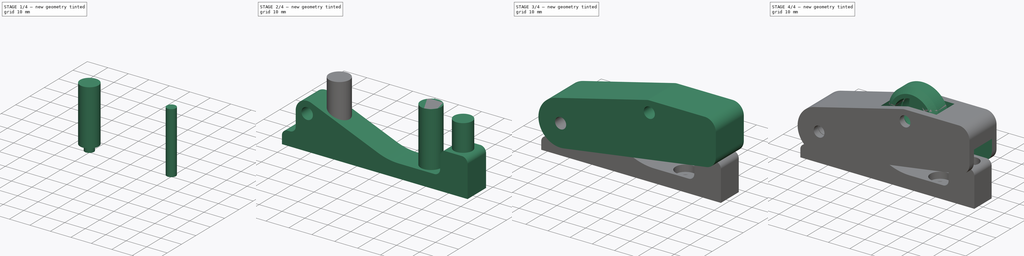
[diagram: build sequence overview — one tinted view per stage of 4, left to right]
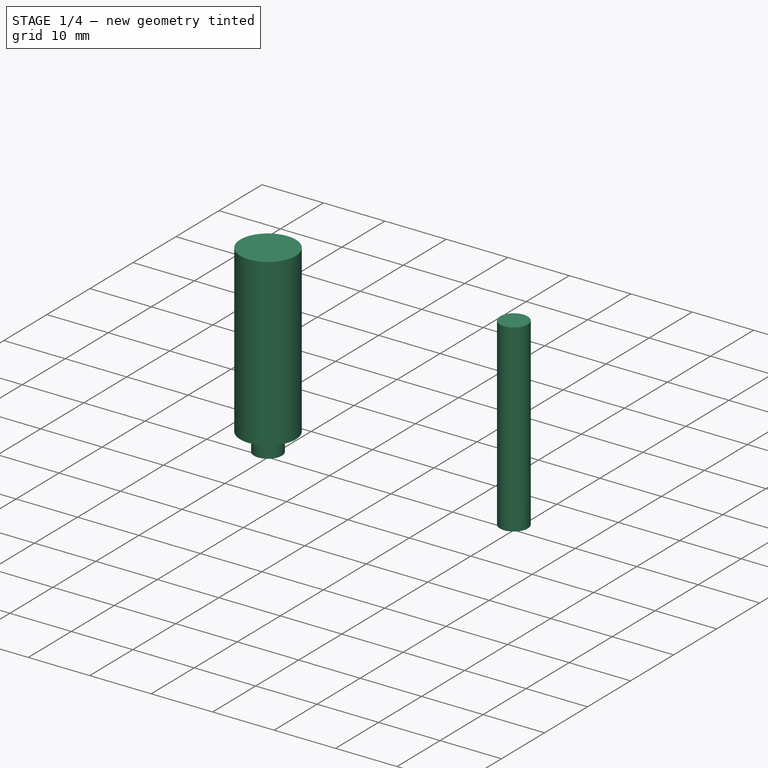
[diagram: stage 1 of 4 — iso view after this stage's code; geometry added in this stage tinted green]
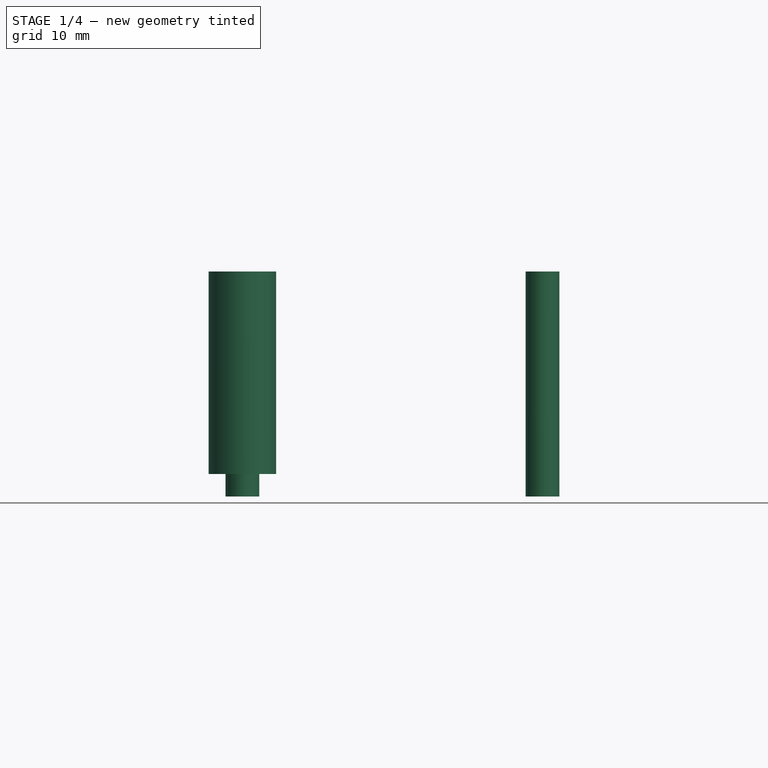
[diagram: stage 1 of 4 — front view after this stage's code; geometry added in this stage tinted green]
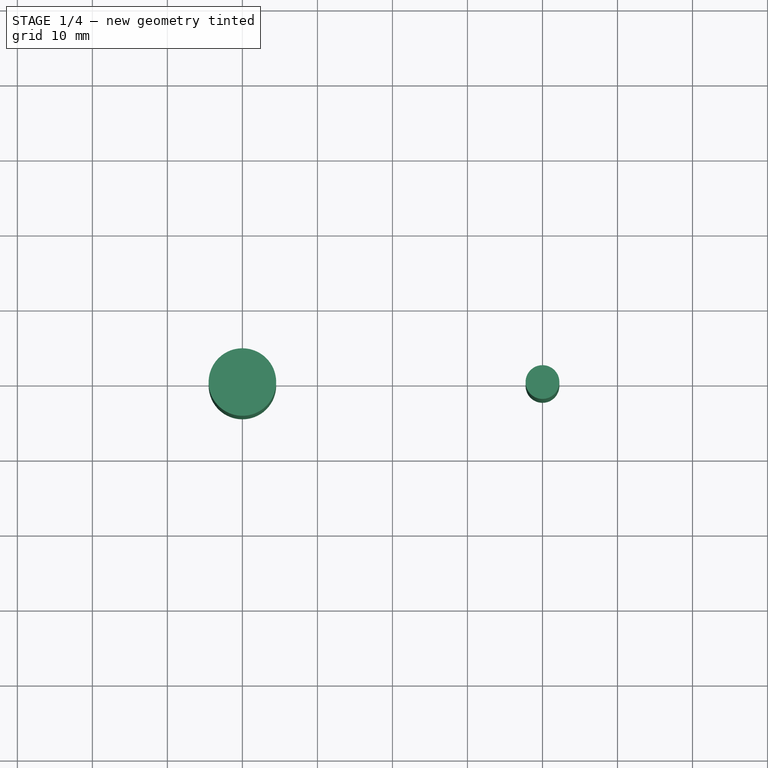
[diagram: stage 1 of 4 — top view after this stage's code; geometry added in this stage tinted green]
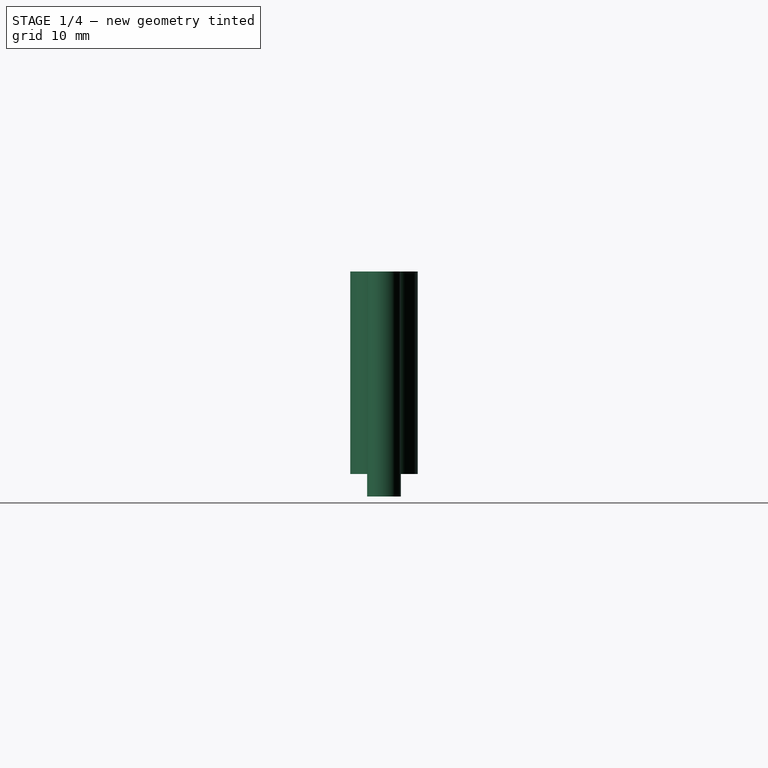
[diagram: stage 1 of 4 — right view after this stage's code; geometry added in this stage tinted green]
FCSTD DOCUMENT  (FreeCAD 0.19R23141 (Git))
Label: wheel_assembly
License: All rights reserved
LicenseURL: http://en.wikipedia.org/wiki/All_rights_reserved
objects: Part::Cylinder×6, Sketcher::SketchObject×4, PartDesign::Body×3, PartDesign::Boolean×3, PartDesign::Pad×2, PartDesign::Revolution×1, PartDesign::Pocket×1
note: 24 computed .brp shape members not serialized (recipe doc carries the construction recipe); baked Part::Feature solids carry a one-line shape summary decoded from their .brp

FEATURE [Part::Cylinder] Cylinder003
  Angle = 360
  AttacherType = Attacher::AttachEngine3D
  Height = 27
  Placement = pos=(-30,0,0) rot=(0,1,0;3.14159rad)
  Radius = 4.5
FEATURE [Part::Cylinder] Cylinder004
  Angle = 360
  AttacherType = Attacher::AttachEngine3D
  Height = 30
  Placement = pos=(10,0,0) rot=(0,1,0;3.14159rad)
  Radius = 2.25
FEATURE [Part::Cylinder] Cylinder005
  Angle = 360
  AttacherType = Attacher::AttachEngine3D
  Height = 30
  Placement = pos=(-30,0,0) rot=(0,1,0;3.14159rad)
  Radius = 2.25
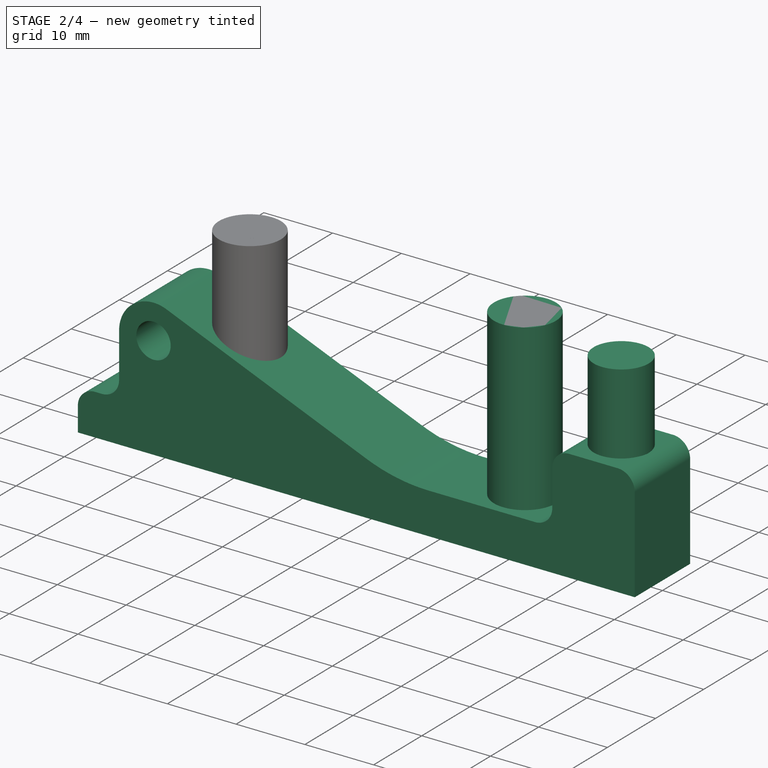
[diagram: stage 2 of 4 — iso view after this stage's code; geometry added in this stage tinted green]
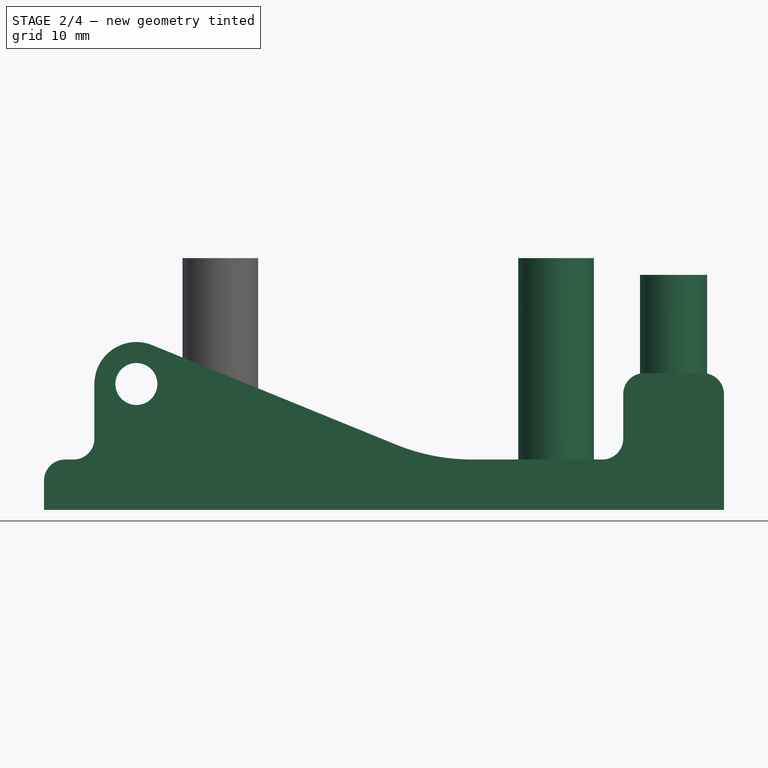
[diagram: stage 2 of 4 — front view after this stage's code; geometry added in this stage tinted green]
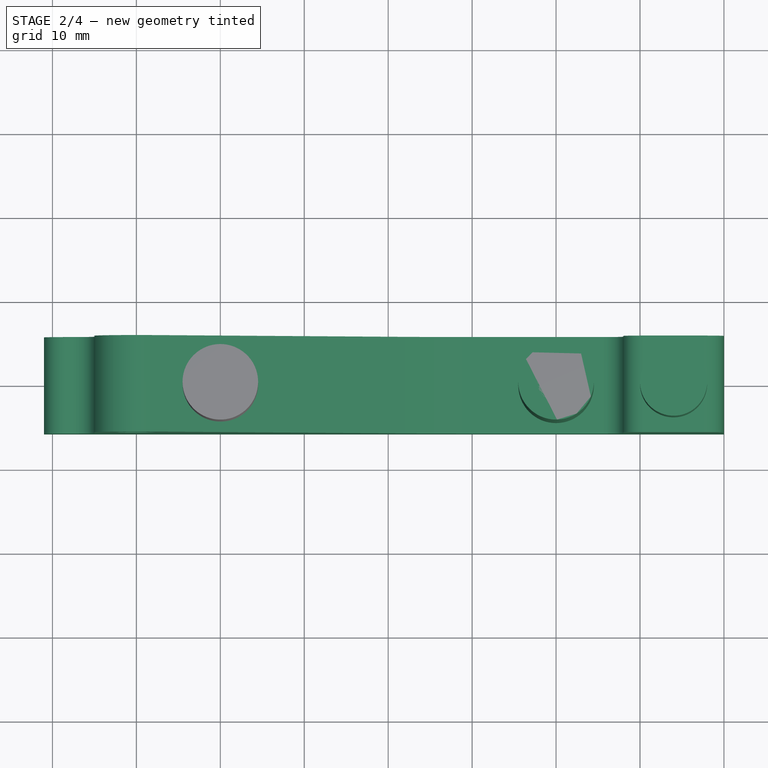
[diagram: stage 2 of 4 — top view after this stage's code; geometry added in this stage tinted green]
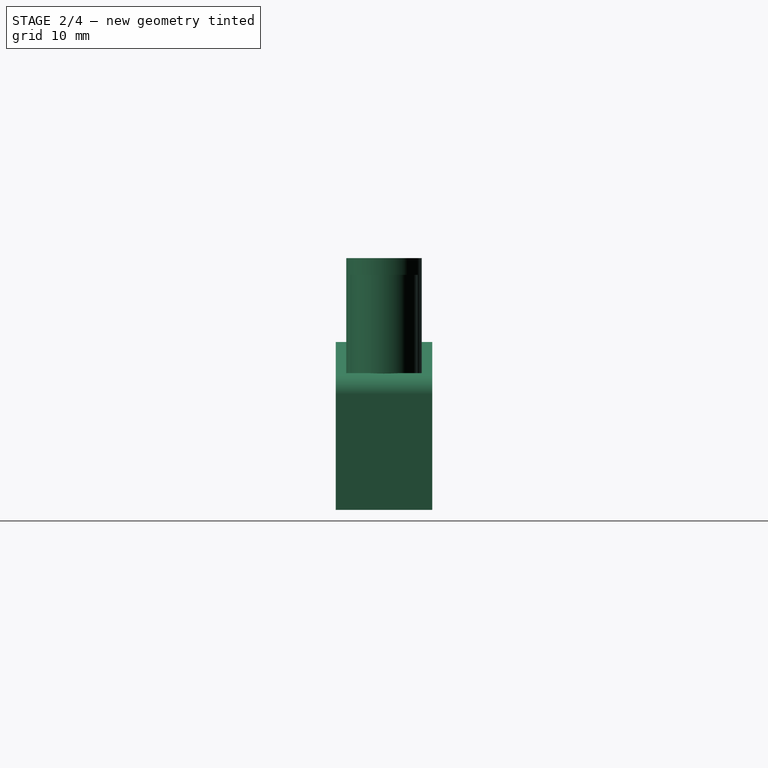
[diagram: stage 2 of 4 — right view after this stage's code; geometry added in this stage tinted green]
FEATURE [Sketcher::SketchObject] Sketch003
  MapMode = 5
  Placement = pos=(0,0,0) rot=(1,0,0;1.5708rad)
  Support = -> [XZ_Plane002]
  sketch-geometry (17):
    g0: ArcOfCircle CenterX=-40 CenterY=-15 CenterZ=0 NormalX=0 NormalY=0 NormalZ=1 AngleXU=0 Radius=5 StartAngle=1.18339 EndAngle=3.14159
    g1: LineSegment StartX=-51 StartY=-30 StartZ=0 EndX=30 EndY=-30 EndZ=0
    g2: Circle CenterX=-40 CenterY=-15 CenterZ=0 NormalX=0 NormalY=0 NormalZ=1 AngleXU=0 Radius=2.5
    g3: LineSegment StartX=-38.111 StartY=-10.3705 StartZ=0 EndX=-9.06698 EndY=-22.2214 EndZ=0
    g4: LineSegment StartX=30 StartY=-16.2062 StartZ=0 EndX=30 EndY=-30 EndZ=0
    g5: LineSegment StartX=0 StartY=-24 StartZ=0 EndX=15.5 EndY=-24 EndZ=0
    g6: LineSegment StartX=18 StartY=-21.5 StartZ=0 EndX=18 EndY=-16.2062 EndZ=0
    g7: LineSegment StartX=20.5 StartY=-13.7062 StartZ=0 EndX=27.5 EndY=-13.7062 EndZ=0
    g8: LineSegment StartX=-45 StartY=-15 StartZ=0 EndX=-45 EndY=-21.5 EndZ=0
    g9: LineSegment StartX=-47.5 StartY=-24 StartZ=0 EndX=-48.5 EndY=-24 EndZ=0
    g10: LineSegment StartX=-51 StartY=-26.5 StartZ=0 EndX=-51 EndY=-30 EndZ=0
    g11: ArcOfCircle CenterX=20.5 CenterY=-16.2062 CenterZ=0 NormalX=0 NormalY=0 NormalZ=1 AngleXU=0 Radius=2.5 StartAngle=1.5708 EndAngle=3.14159
    g12: ArcOfCircle CenterX=27.5 CenterY=-16.2062 CenterZ=0 NormalX=0 NormalY=0 NormalZ=1 AngleXU=0 Radius=2.5 StartAngle=0 EndAngle=1.5708
    g13: ArcOfCircle CenterX=15.5 CenterY=-21.5 CenterZ=0 NormalX=0 NormalY=0 NormalZ=1 AngleXU=0 Radius=2.5 StartAngle=4.71239 EndAngle=6.28319
    g14: ArcOfCircle CenterX=0 CenterY=0 CenterZ=0 NormalX=0 NormalY=0 NormalZ=1 AngleXU=0 Radius=24 StartAngle=4.32498 EndAngle=4.71239
    g15: ArcOfCircle CenterX=-48.5 CenterY=-26.5 CenterZ=0 NormalX=0 NormalY=0 NormalZ=1 AngleXU=0 Radius=2.5 StartAngle=1.5708 EndAngle=3.14159
    g16: ArcOfCircle CenterX=-47.5 CenterY=-21.5 CenterZ=0 NormalX=0 NormalY=0 NormalZ=1 AngleXU=0 Radius=2.5 StartAngle=4.71239 EndAngle=6.28319
  constraints (41):
    c: Diameter(g0) = 10
    c: DistanceX(g0,g-1) = 40
    c: DistanceY(g0,g-1) = 15
    c: Horizontal(g1)
    c: Coincident(g2,g0)
    c: Diameter(g2) = 5
    c: Tangent(g0,g3) = 1.5708
    c: Vertical(g4)
    c: Coincident(g1,g4)
    c: Horizontal(g5)
    c: Vertical(g6)
    c: Horizontal(g7)
    c: Tangent(g0,g8) = -1.5708
    c: Horizontal(g9)
    c: Vertical(g10)
    c: Coincident(g10,g1)
    c: DistanceY(g1,g-1) = 30
    c: Tangent(g6,g11) = 1.5708
    c: Tangent(g7,g11) = 1.5708
    c: Tangent(g7,g12) = 1.5708
    c: Tangent(g4,g12) = 1.5708
    c: Tangent(g6,g13) = -1.5708
    c: Tangent(g5,g13) = -1.5708
    c: Tangent(g5,g14) = -1.5708
    c: Tangent(g3,g14) = -1.5708
    c: Tangent(g10,g15) = -1.5708
    c: Tangent(g9,g15) = -1.5708
    c: Tangent(g9,g16) = 1.5708
    c: Tangent(g8,g16) = 1.5708
    c: Diameter(g16) = 5
    c: Equal(g16,g15)
    c: Equal(g16,g13)
    c: Equal(g16,g11)
    c: Equal(g16,g12)
    c: Vertical(g8)
    c: DistanceY(g1,g9) = 6
    c: Coincident(g14,g-1)
    c: DistanceX(g14,g1) = 30
    c: DistanceY(g1,g5) = 6
    c: DistanceX(g6,g4) = 12
    c: DistanceX(g9,g9) = 1
FEATURE [PartDesign::Pad] Pad001
  Direction = (1,1,1)
  Length = 11.5
  Length2 = 100
  Midplane = true
  Placement = pos=(0,0,0) rot=(1,0,0;1.5708rad)
  Profile = -> Sketch003
  Type = 0
FEATURE [Part::Cylinder] Cylinder
  Angle = 360
  AttacherType = Attacher::AttachEngine3D
  Height = 15
  Placement = pos=(24,0,-17) rot=(0,0,1;0rad)
  Radius = 4
FEATURE [PartDesign::Body] Body001
  Group = -> [Sketch001,Pad,Sketch002,Pocket,Boolean001]
  Origin = -> Origin001
  Tip = -> Boolean001
FEATURE [Part::Cylinder] Cylinder002
  Angle = 360
  AttacherType = Attacher::AttachEngine3D
  Height = 27
  Placement = pos=(10,0,0) rot=(0,1,0;3.14159rad)
  Radius = 4.5
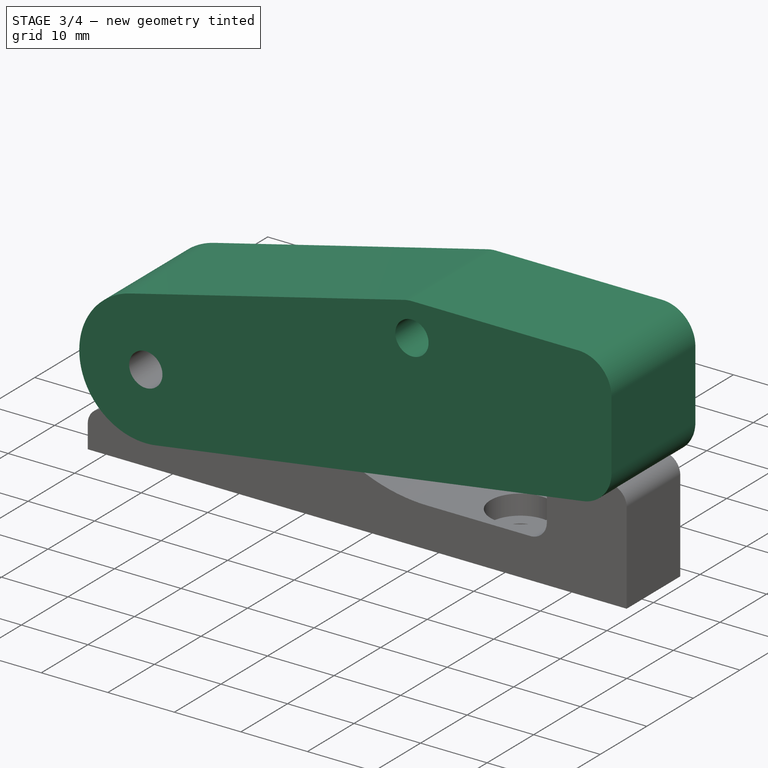
[diagram: stage 3 of 4 — iso view after this stage's code; geometry added in this stage tinted green]
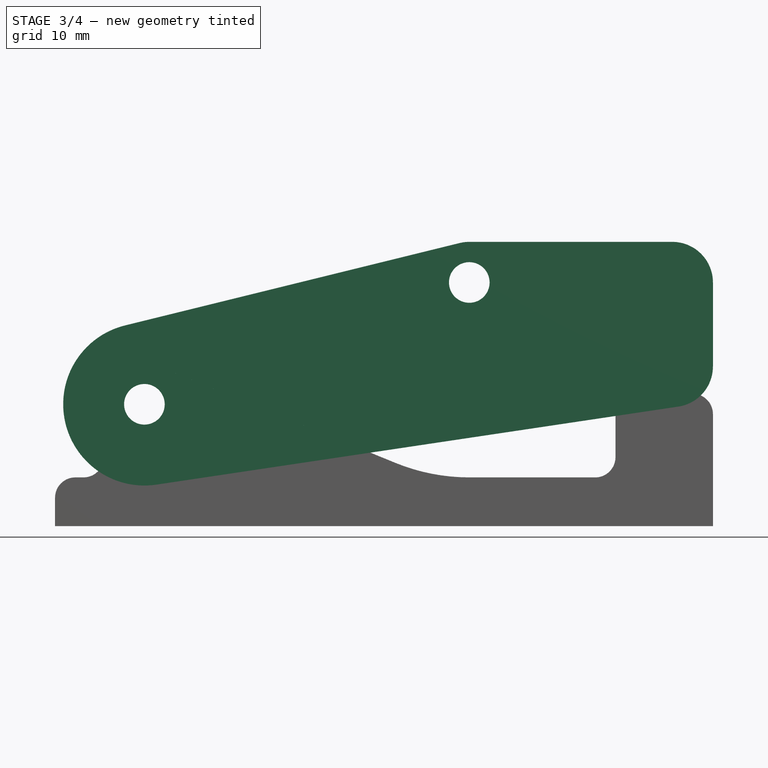
[diagram: stage 3 of 4 — front view after this stage's code; geometry added in this stage tinted green]
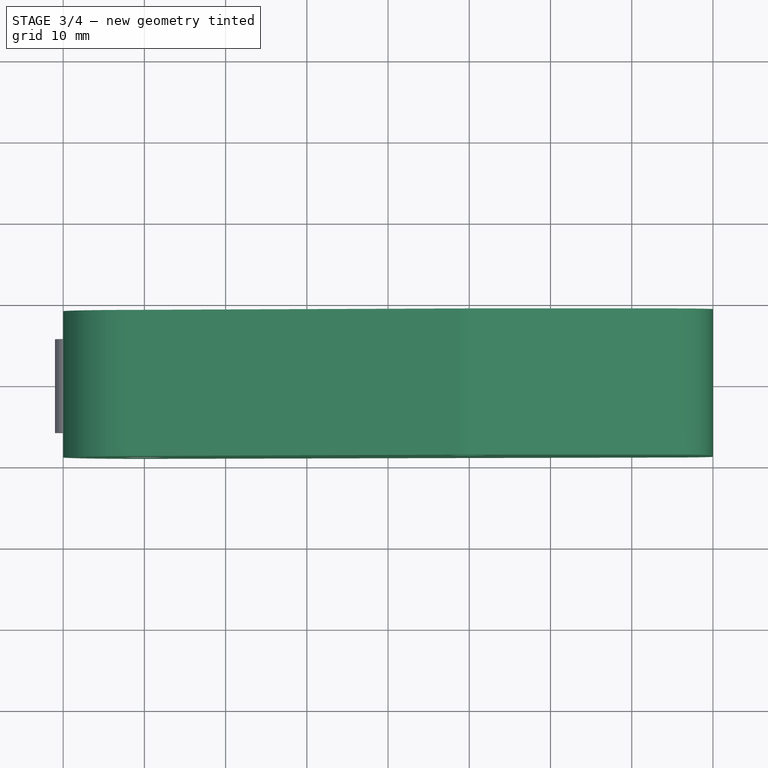
[diagram: stage 3 of 4 — top view after this stage's code; geometry added in this stage tinted green]
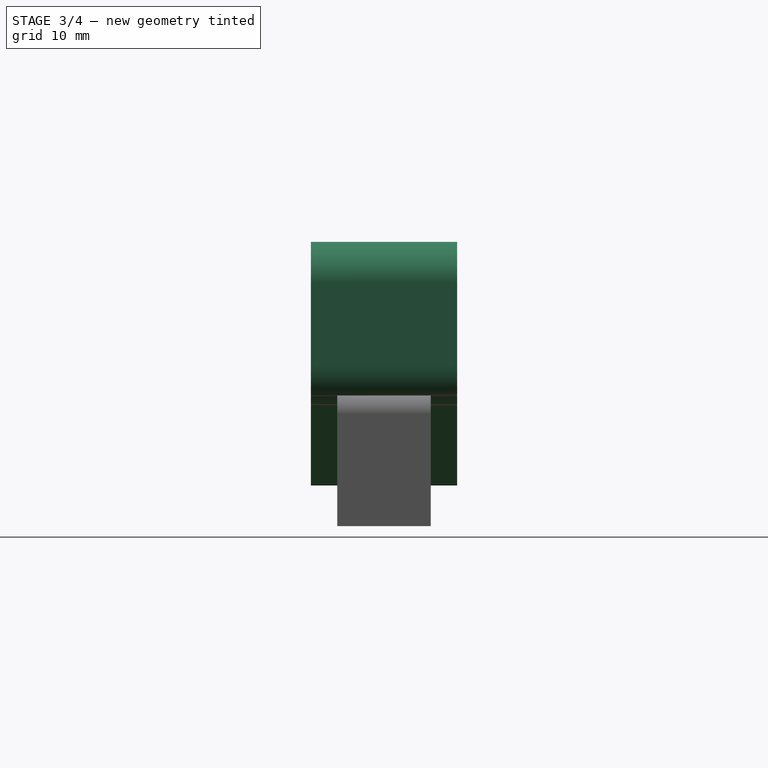
[diagram: stage 3 of 4 — right view after this stage's code; geometry added in this stage tinted green]
FEATURE [PartDesign::Body] Body
  Group = -> [Sketch,Revolution]
  Origin = -> Origin
  Tip = -> Revolution
FEATURE [Sketcher::SketchObject] Sketch001
  MapMode = 5
  Placement = pos=(0,0,0) rot=(1,0,0;1.5708rad)
  Support = -> [XZ_Plane001]
  sketch-geometry (10):
    g0: Circle CenterX=0 CenterY=0 CenterZ=0 NormalX=0 NormalY=0 NormalZ=1 AngleXU=0 Radius=2.5
    g1: ArcOfCircle CenterX=0 CenterY=0 CenterZ=0 NormalX=0 NormalY=0 NormalZ=1 AngleXU=0 Radius=5 StartAngle=1.5708 EndAngle=1.81226
    g2: LineSegment StartX=-1.19561 StartY=4.85495 StartZ=0 EndX=-42.3912 EndY=-5.2901 EndZ=0
    g3: ArcOfCircle CenterX=-40 CenterY=-15 CenterZ=0 NormalX=0 NormalY=0 NormalZ=1 AngleXU=0 Radius=10 StartAngle=1.81226 EndAngle=4.8608
    g4: LineSegment StartX=-8e-16 StartY=5 StartZ=0 EndX=25 EndY=5 EndZ=0
    g5: ArcOfCircle CenterX=25 CenterY=3e-16 CenterZ=0 NormalX=0 NormalY=0 NormalZ=1 AngleXU=0 Radius=5 StartAngle=0 EndAngle=1.5708
    g6: LineSegment StartX=-38.5213 StartY=-24.8901 StartZ=0 EndX=25.7393 EndY=-15.2825 EndZ=0
    g7: ArcOfCircle CenterX=25 CenterY=-10.3375 CenterZ=0 NormalX=0 NormalY=0 NormalZ=1 AngleXU=0 Radius=5 StartAngle=4.8608 EndAngle=6.28319
    g8: LineSegment StartX=30 StartY=-10.3375 StartZ=0 EndX=30 EndY=0 EndZ=0
    g9: Circle CenterX=-40 CenterY=-15 CenterZ=0 NormalX=0 NormalY=0 NormalZ=1 AngleXU=0 Radius=2.5
  constraints (22):
    c: Coincident(g0,g-1)
    c: Diameter(g0) = 5
    c: Coincident(g1,g0)
    c: Tangent(g1,g2) = -1.5708
    c: Tangent(g3,g2) = -1.5708
    c: Diameter(g3) = 20
    c: Tangent(g1,g4) = 1.5708
    c: Horizontal(g4)
    c: Tangent(g8,g7) = -1.5708
    c: Tangent(g8,g5) = -1.5708
    c: Tangent(g7,g6) = -1.5708
    c: Equal(g7,g5)
    c: Equal(g5,g1)
    c: Tangent(g5,g4) = 1.5708
    c: Vertical(g8)
    c: Tangent(g6,g3) = -1.5708
    c: Coincident(g9,g3)
    c: Equal(g9,g0)
    c: DistanceX(g3,g0) = 40
    c: DistanceY(g3,g0) = 15
    c: DistanceX(g0,g5) = 30
    c: Diameter(g5) = 10
FEATURE [PartDesign::Pad] Pad
  Direction = (1,1,1)
  Length = 18
  Length2 = 100
  Midplane = true
  Placement = pos=(0,0,0) rot=(1,0,0;1.5708rad)
  Profile = -> Sketch001
  Type = 0
FEATURE [Part::Cylinder] Cylinder001
  Angle = 360
  AttacherType = Attacher::AttachEngine3D
  Height = 15
  Placement = pos=(24,0,-17) rot=(0,0,1;0rad)
  Radius = 4
FEATURE [PartDesign::Boolean] Boolean
  BaseFeature = -> Pad001
  Group = -> [Cylinder]
  Type = 1
FEATURE [PartDesign::Boolean] Boolean002
  BaseFeature = -> Boolean
  Group = -> [Cylinder005,Cylinder002,Cylinder003,Cylinder004]
  Type = 1
FEATURE [PartDesign::Body] Body002
  Group = -> [Sketch003,Pad001,Boolean,Boolean002]
  Origin = -> Origin002
  Tip = -> Boolean002
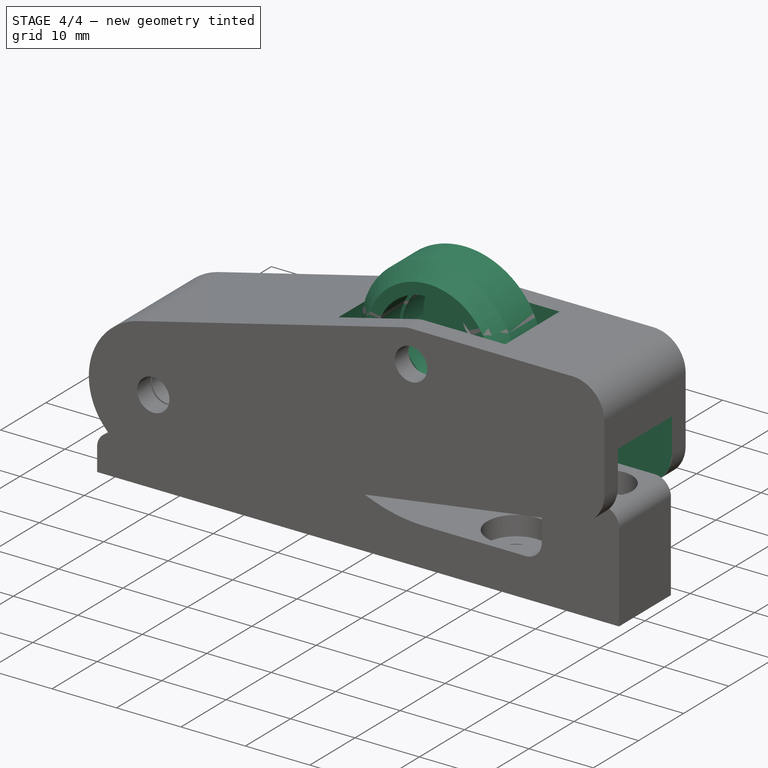
[diagram: stage 4 of 4 — iso view after this stage's code; geometry added in this stage tinted green]
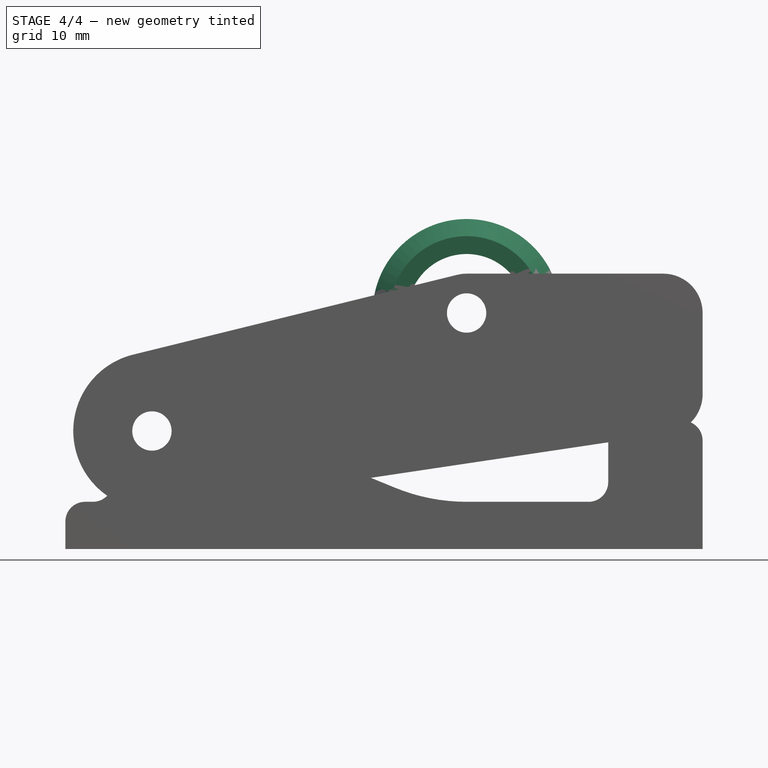
[diagram: stage 4 of 4 — front view after this stage's code; geometry added in this stage tinted green]
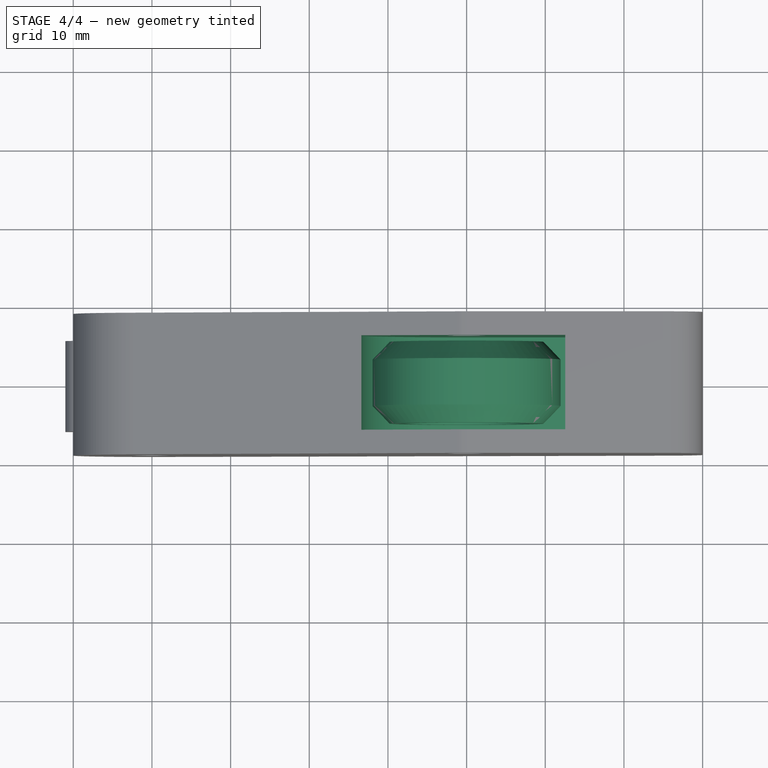
[diagram: stage 4 of 4 — top view after this stage's code; geometry added in this stage tinted green]
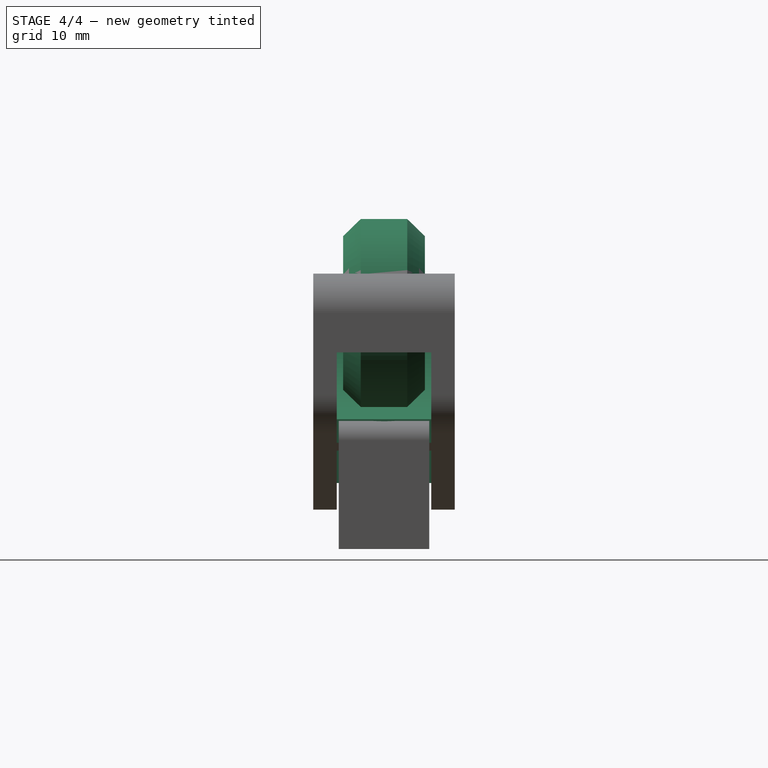
[diagram: stage 4 of 4 — right view after this stage's code; geometry added in this stage tinted green]
FEATURE [Sketcher::SketchObject] Sketch
  MapMode = 5
  Placement = pos=(0,0,0) rot=(0.57735,0.57735,0.57735;2.0944rad)
  Support = -> [YZ_Plane]
  sketch-geometry (14):
    g0: LineSegment StartX=-5.2 StartY=8 StartZ=0 EndX=-0.2 EndY=8 EndZ=0
    g1: LineSegment StartX=-0.2 StartY=8 StartZ=0 EndX=-0.2 EndY=7.5 EndZ=0
    g2: LineSegment StartX=-0.2 StartY=7.5 StartZ=0 EndX=0.2 EndY=7.5 EndZ=0
    g3: LineSegment StartX=0.2 StartY=7.5 StartZ=0 EndX=0.2 EndY=8 EndZ=0
    g4: LineSegment StartX=0.2 StartY=8 StartZ=0 EndX=5.2 EndY=8 EndZ=0
    g5: LineSegment StartX=5.2 StartY=8 StartZ=0 EndX=5.2 EndY=9.77 EndZ=0
    g6: LineSegment StartX=5.2 StartY=9.77 StartZ=0 EndX=2.95 EndY=11.95 EndZ=0
    g7: LineSegment StartX=2.95 StartY=11.95 StartZ=0 EndX=-2.95 EndY=11.95 EndZ=0
    g8: LineSegment StartX=-2.95 StartY=11.95 StartZ=0 EndX=-5.2 EndY=9.77 EndZ=0
    g9: LineSegment StartX=-5.2 StartY=9.77 StartZ=0 EndX=-5.2 EndY=8 EndZ=0
    g10: LineSegment [constr] StartX=-0.2 StartY=7.5 StartZ=0 EndX=0 EndY=0 EndZ=0
    g11: LineSegment [constr] StartX=0 StartY=0 StartZ=0 EndX=0.2 EndY=7.5 EndZ=0
    g12: LineSegment [constr] StartX=-5.2 StartY=8 StartZ=0 EndX=0 EndY=9e-16 EndZ=0
    g13: LineSegment [constr] StartX=0 StartY=9e-16 StartZ=0 EndX=5.2 EndY=8 EndZ=0
  constraints (38):
    c: Horizontal(g0)
    c: Coincident(g0,g1)
    c: Vertical(g1)
    c: Coincident(g1,g2)
    c: Coincident(g2,g3)
    c: Vertical(g3)
    c: Coincident(g3,g4)
    c: Horizontal(g4)
    c: Coincident(g4,g5)
    c: Vertical(g5)
    c: Coincident(g5,g6)
    c: Coincident(g6,g7)
    c: Horizontal(g7)
    c: Coincident(g7,g8)
    c: Coincident(g8,g9)
    c: Coincident(g9,g0)
    c: Vertical(g9)
    c: Horizontal(g2)
    c: Coincident(g1,g10)
    c: Coincident(g10,g-1)
    c: Coincident(g10,g11)
    c: Coincident(g11,g2)
    c: Equal(g11,g10)
    c: Coincident(g0,g12)
    c: Coincident(g12,g-1)
    c: Coincident(g12,g13)
    c: Coincident(g13,g4)
    c: Equal(g13,g12)
    c: Equal(g1,g3)
    c: DistanceY(g-1,g0) = 8
    c: DistanceX(g0,g4) = 10.4
    c: DistanceY(g1,g1) = 0.5
    c: DistanceX(g0,g0) = 5
    c: DistanceY(g-1,g7) = 11.95
    c: Equal(g5,g9)
    c: Equal(g8,g6)
    c: DistanceX(g7,g7) = 5.9
    c: DistanceY(g-1,g5) = 9.77
FEATURE [PartDesign::Revolution] Revolution
  Angle = 360
  Axis = (1e-16,1,-1e-16)
  Base = (0,0,0)
  Placement = pos=(0,0,0) rot=(0.57735,0.57735,0.57735;2.0944rad)
  Profile = -> Sketch
  ReferenceAxis = -> Y_Axis
FEATURE [Sketcher::SketchObject] Sketch002
  MapMode = 5
  Placement = pos=(0,0,0) rot=(1,0,0;1.5708rad)
  Support = -> [XZ_Plane001]
  sketch-geometry (12):
    g0: ArcOfCircle CenterX=0 CenterY=0 CenterZ=0 NormalX=0 NormalY=0 NormalZ=1 AngleXU=0 Radius=13.5 StartAngle=0 EndAngle=4.71239
    g1: LineSegment StartX=30 StartY=-5 StartZ=0 EndX=30 EndY=-35.7417 EndZ=0
    g2: LineSegment StartX=-2.5e-15 StartY=-13.5 StartZ=0 EndX=17.6024 EndY=-13.5 EndZ=0
    g3: ArcOfCircle CenterX=-40 CenterY=-15 CenterZ=0 NormalX=0 NormalY=0 NormalZ=1 AngleXU=0 Radius=7.5 StartAngle=1.64724 EndAngle=3.14159
    g4: LineSegment StartX=-47.5 StartY=-15 StartZ=0 EndX=-47.5 EndY=-35.7417 EndZ=0
    g5: LineSegment StartX=-47.5 StartY=-35.7417 StartZ=0 EndX=30 EndY=-35.7417 EndZ=0
    g6: LineSegment StartX=-40.5728 StartY=-7.5219 StartZ=0 EndX=-15.801 EndY=-7.5219 EndZ=0
    g7: ArcOfCircle CenterX=0 CenterY=0 CenterZ=0 NormalX=0 NormalY=0 NormalZ=1 AngleXU=0 Radius=17.5 StartAngle=3.58589 EndAngle=4.71239
    g8: LineSegment StartX=-3.2e-15 StartY=-17.5 StartZ=0 EndX=17.6024 EndY=-17.5 EndZ=0
    g9: LineSegment StartX=17.6024 StartY=-13.5 StartZ=0 EndX=17.6024 EndY=-17.5 EndZ=0
    g10: LineSegment StartX=13.5 StartY=0 StartZ=0 EndX=13.5 EndY=-5 EndZ=0
    g11: LineSegment StartX=13.5 StartY=-5 StartZ=0 EndX=30 EndY=-5 EndZ=0
  constraints (32):
    c: Coincident(g0,g-1)
    c: PointOnObject(g0,g-1)
    c: Vertical(g1)
    c: PointOnObject(g0,g-2)
    c: Diameter(g0) = 27
    c: Coincident(g2,g0)
    c: Horizontal(g2)
    c: DistanceX(g3,g0) = 40
    c: DistanceY(g3,g0) = 15
    c: Tangent(g3,g4) = -1.5708
    c: Coincident(g4,g5)
    c: Horizontal(g5)
    c: Vertical(g4)
    c: Diameter(g3) = 15
    c: Coincident(g6,g3)
    c: Horizontal(g6)
    c: Coincident(g7,g0)
    c: Coincident(g7,g6)
    c: PointOnObject(g7,g-2)
    c: Coincident(g8,g7)
    c: Horizontal(g8)
    c: Coincident(g9,g2)
    c: Coincident(g9,g8)
    c: Vertical(g9)
    c: Coincident(g5,g1)
    c: DistanceY(g9,g9) = 4
    c: DistanceX(g0,g1) = 30
    c: Tangent(g0,g10) = 1.5708
    c: Coincident(g10,g11)
    c: Coincident(g11,g1)
    c: Horizontal(g11)
    c: DistanceY(g10,g10) = 5
FEATURE [PartDesign::Pocket] Pocket
  BaseFeature = -> Pad
  Length = 12
  Length2 = 100
  Midplane = true
  Placement = pos=(0,0,0) rot=(1,0,0;1.5708rad)
  Profile = -> Sketch002
  Type = 0
FEATURE [PartDesign::Boolean] Boolean001
  BaseFeature = -> Pocket
  Group = -> [Cylinder001]
  Type = 1
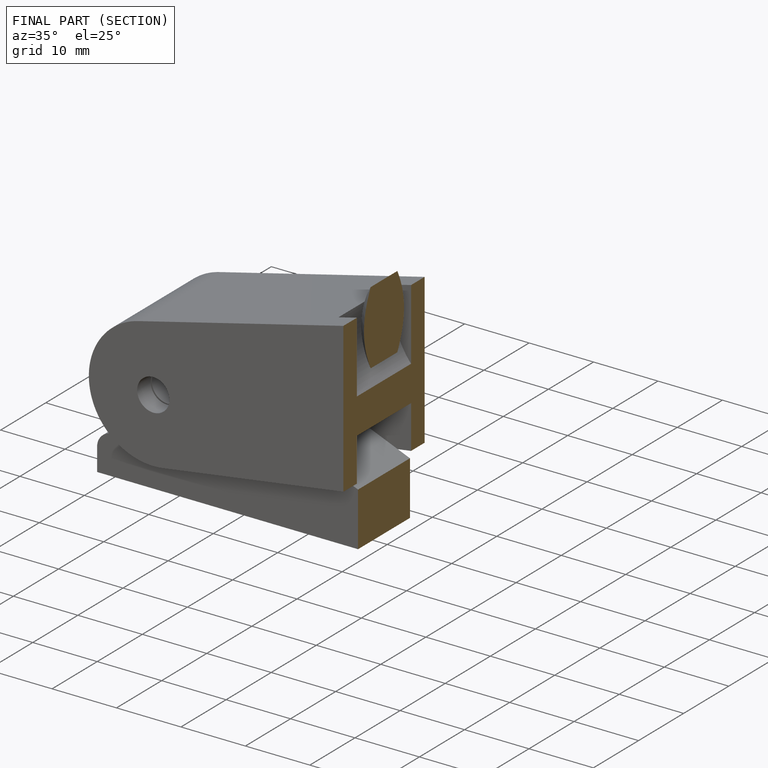
[diagram: finished part — half-section view (interior)]
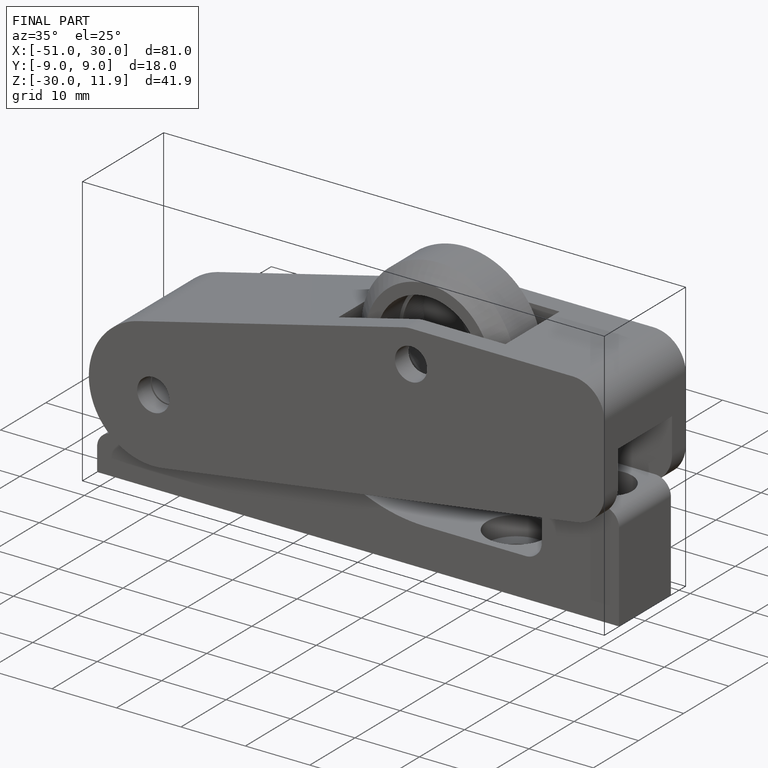
[diagram: finished part — iso view with bounding-box wireframe]
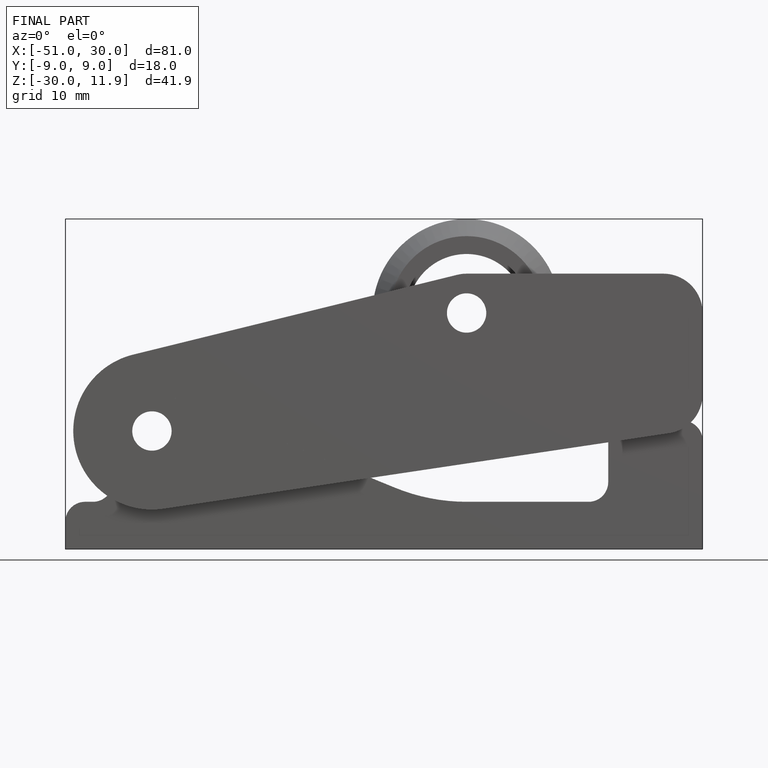
[diagram: finished part — front view with bounding-box wireframe]
